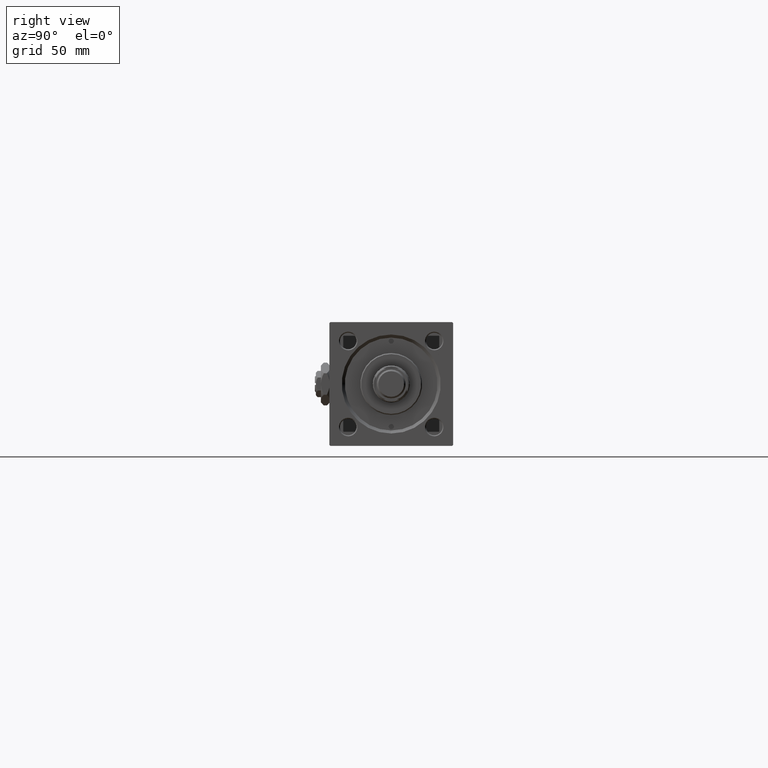
[diagram: clean part render]
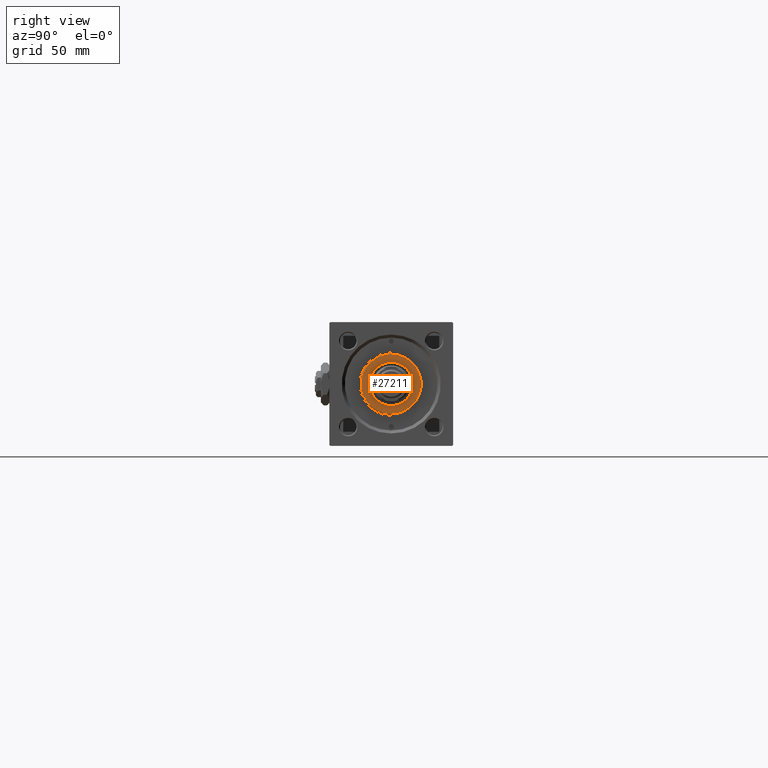
[diagram: same view with one face highlighted and labeled with its STEP entity id]
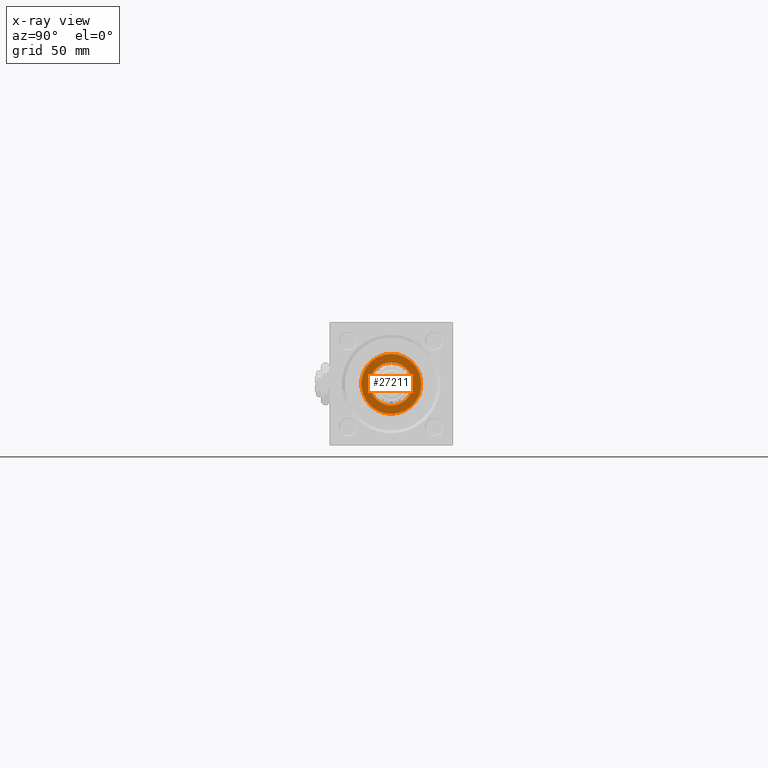
[diagram: x-ray of the same camera — body ghosted, the highlighted face saturated]
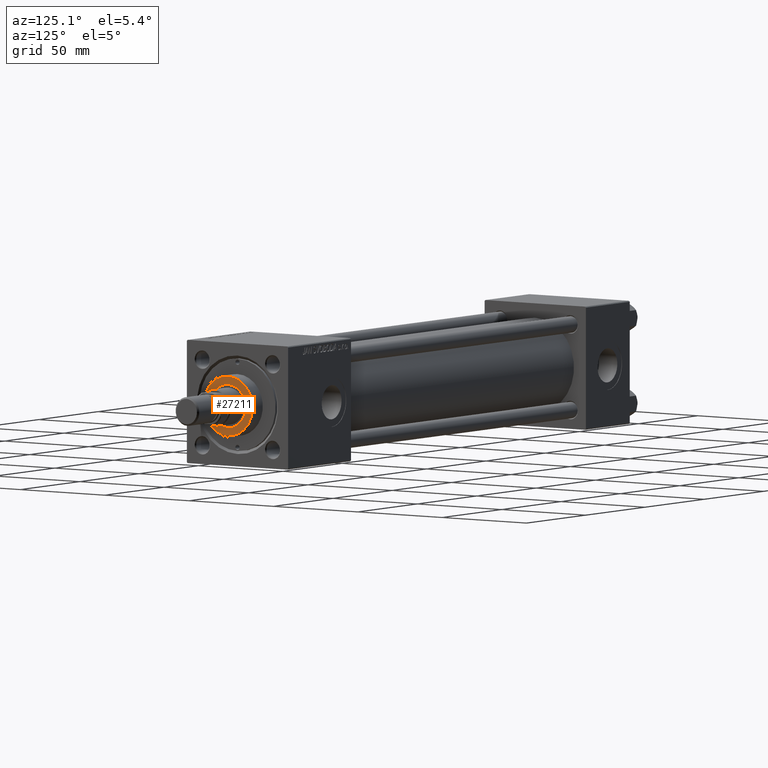
[diagram: same view with one face highlighted and labeled with its STEP entity id]
A machine part, right view. The second image highlights one B-rep face of the part: STEP entity #27211.
The next image is the same camera in x-ray: the body ghosted, the highlighted face saturated — about 0% of this face is hidden behind the body in this view.
A second angle (auxiliary view) of the same face is appended — the face is thin or edge-on in the first view.
In plain terms, the highlighted planar face has unit normal (1, 0, 0).
Its self-contained STEP definition (entity closure, byte-faithful):
#402 = DIRECTION ( 'NONE',  ( 0.000000000000000000, 0.000000000000000000, 1.000000000000000000 ) ) ;
#2442 = CARTESIAN_POINT ( 'NONE',  ( 14.50000000000001776, 1.806354028742346985E-15, 36.69999999999999574 ) ) ;
#3530 = AXIS2_PLACEMENT_3D ( 'NONE', #37043, #402, #5206 ) ;
#4096 = CIRCLE ( 'NONE', #34023, 14.50000000000001776 ) ;
#4281 = VERTEX_POINT ( 'NONE', #42248 ) ;
#4952 = EDGE_LOOP ( 'NONE', ( #17367, #33427 ) ) ;
#5206 = DIRECTION ( 'NONE',  ( 1.000000000000000000, 0.000000000000000000, 0.000000000000000000 ) ) ;
#5592 = AXIS2_PLACEMENT_3D ( 'NONE', #40052, #39001, #31254 ) ;
#7035 = VERTEX_POINT ( 'NONE', #12503 ) ;
#12503 = CARTESIAN_POINT ( 'NONE',  ( -14.50000000000001776, 0.000000000000000000, 36.69999999999999574 ) ) ;
#14269 = EDGE_LOOP ( 'NONE', ( #34298, #18015 ) ) ;
#15410 = FACE_OUTER_BOUND ( 'NONE', #4952, .T. ) ;
#17367 = ORIENTED_EDGE ( 'NONE', *, *, #30726, .T. ) ;
#18015 = ORIENTED_EDGE ( 'NONE', *, *, #51949, .F. ) ;
#19688 = FACE_BOUND ( 'NONE', #14269, .T. ) ;
#21134 = VERTEX_POINT ( 'NONE', #45062 ) ;
#23992 = DIRECTION ( 'NONE',  ( 1.000000000000000000, 0.000000000000000000, 0.000000000000000000 ) ) ;
#24046 = DIRECTION ( 'NONE',  ( 0.000000000000000000, 0.000000000000000000, 1.000000000000000000 ) ) ;
#27211 = ADVANCED_FACE ( 'NONE', ( #19688, #15410 ), #31724, .T. ) ;
#28055 = DIRECTION ( 'NONE',  ( 1.000000000000000000, 0.000000000000000000, 0.000000000000000000 ) ) ;
#28855 = AXIS2_PLACEMENT_3D ( 'NONE', #52389, #24046, #28055 ) ;
#30726 = EDGE_CURVE ( 'NONE', #7035, #32970, #43377, .T. ) ;
#31254 = DIRECTION ( 'NONE',  ( 1.000000000000000000, 0.000000000000000000, 0.000000000000000000 ) ) ;
#31724 = PLANE ( 'NONE',  #42028 ) ;
#32106 = EDGE_CURVE ( 'NONE', #32970, #7035, #4096, .T. ) ;
#32970 = VERTEX_POINT ( 'NONE', #2442 ) ;
#33427 = ORIENTED_EDGE ( 'NONE', *, *, #32106, .T. ) ;
#34023 = AXIS2_PLACEMENT_3D ( 'NONE', #48333, #39771, #23992 ) ;
#34298 = ORIENTED_EDGE ( 'NONE', *, *, #39269, .F. ) ;
#36305 = CIRCLE ( 'NONE', #5592, 10.50000000000000000 ) ;
#36818 = CIRCLE ( 'NONE', #3530, 10.50000000000000000 ) ;
#37043 = CARTESIAN_POINT ( 'NONE',  ( 0.000000000000000000, 0.000000000000000000, 36.69999999999999574 ) ) ;
#38939 = DIRECTION ( 'NONE',  ( 0.000000000000000000, 0.000000000000000000, 1.000000000000000000 ) ) ;
#39001 = DIRECTION ( 'NONE',  ( 0.000000000000000000, 0.000000000000000000, 1.000000000000000000 ) ) ;
#39269 = EDGE_CURVE ( 'NONE', #4281, #21134, #36818, .T. ) ;
#39771 = DIRECTION ( 'NONE',  ( 0.000000000000000000, 0.000000000000000000, 1.000000000000000000 ) ) ;
#40052 = CARTESIAN_POINT ( 'NONE',  ( 0.000000000000000000, 0.000000000000000000, 36.69999999999999574 ) ) ;
#42028 = AXIS2_PLACEMENT_3D ( 'NONE', #52296, #38939, #51764 ) ;
#42248 = CARTESIAN_POINT ( 'NONE',  ( 10.50000000000000000, 0.000000000000000000, 36.69999999999999574 ) ) ;
#43377 = CIRCLE ( 'NONE', #28855, 14.50000000000001776 ) ;
#45062 = CARTESIAN_POINT ( 'NONE',  ( -10.50000000000000000, 1.285879139104720831E-15, 36.69999999999999574 ) ) ;
#48333 = CARTESIAN_POINT ( 'NONE',  ( 0.000000000000000000, 0.000000000000000000, 36.69999999999999574 ) ) ;
#51764 = DIRECTION ( 'NONE',  ( 1.000000000000000000, 0.000000000000000000, -0.000000000000000000 ) ) ;
#51949 = EDGE_CURVE ( 'NONE', #21134, #4281, #36305, .T. ) ;
#52296 = CARTESIAN_POINT ( 'NONE',  ( 0.000000000000000000, 0.000000000000000000, 36.69999999999999574 ) ) ;
#52389 = CARTESIAN_POINT ( 'NONE',  ( 0.000000000000000000, 0.000000000000000000, 36.69999999999999574 ) ) ;